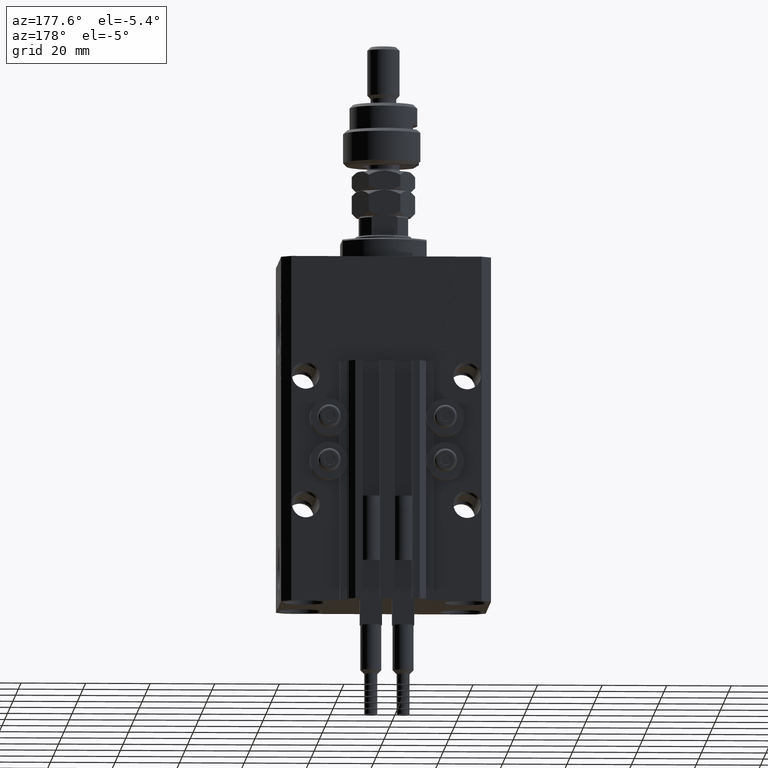
[diagram: clean part render]
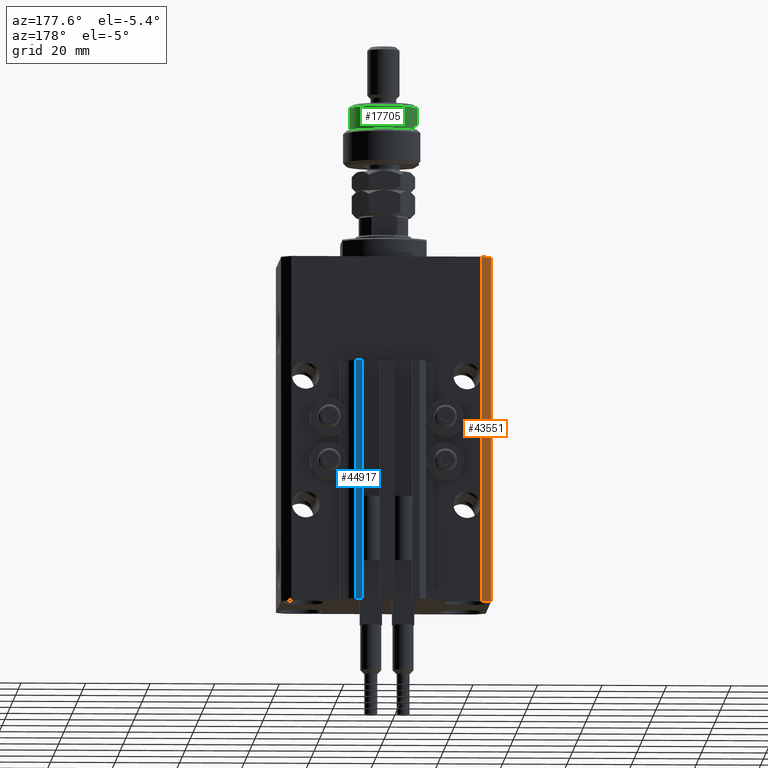
[diagram: same view with three faces highlighted in distinct colors, each labeled with its STEP entity id]
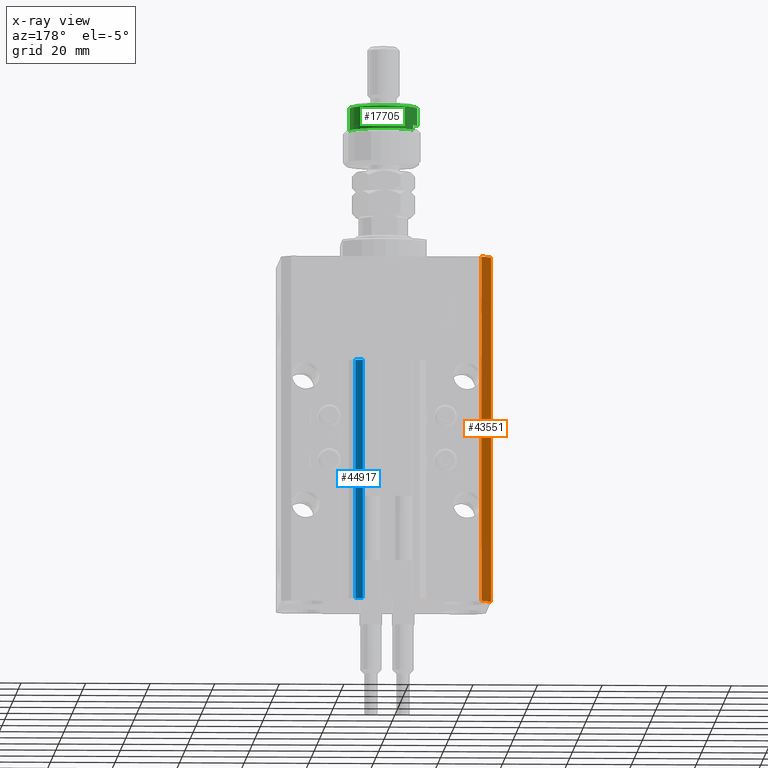
[diagram: x-ray of the same camera — body ghosted, the three highlighted faces saturated]
A machine part, auxiliary view with three faces highlighted in distinct colors.
The next image is the same camera in x-ray (body ghosted, the three faces saturated) — at least one of them is partly hidden behind the body in this view.
Their STEP definitions:

[orange] entity #43551 — the highlighted planar face has unit normal (-0.7071, 0.7071, 0).
#1426 = EDGE_LOOP ( 'NONE', ( #9953, #42398, #10125, #46080 ) ) ;
#3256 = EDGE_CURVE ( 'NONE', #30789, #12970, #38847, .T. ) ;
#5864 = CARTESIAN_POINT ( 'NONE',  ( -32.49999999999650413, 19.49999999999949907, -107.0000000000000000 ) ) ;
#7601 = CARTESIAN_POINT ( 'NONE',  ( -29.49999999999650413, 22.49999999999949907, 0.000000000000000000 ) ) ;
#7743 = CARTESIAN_POINT ( 'NONE',  ( -32.49999999999650413, 19.49999999999949907, 0.000000000000000000 ) ) ;
#9953 = ORIENTED_EDGE ( 'NONE', *, *, #3256, .F. ) ;
#10125 = ORIENTED_EDGE ( 'NONE', *, *, #39813, .T. ) ;
#11786 = DIRECTION ( 'NONE',  ( -0.7071067811865474617, -0.7071067811865474617, 0.000000000000000000 ) ) ;
#12970 = VERTEX_POINT ( 'NONE', #7743 ) ;
#13040 = CARTESIAN_POINT ( 'NONE',  ( -32.49999999999650413, 19.49999999999949907, -107.0000000000000000 ) ) ;
#14966 = DIRECTION ( 'NONE',  ( 0.000000000000000000, 0.000000000000000000, 1.000000000000000000 ) ) ;
#15742 = LINE ( 'NONE', #31720, #22357 ) ;
#17037 = PLANE ( 'NONE',  #47577 ) ;
#17490 = CARTESIAN_POINT ( 'NONE',  ( -29.49999999999650413, 22.49999999999949907, 0.000000000000000000 ) ) ;
#19177 = LINE ( 'NONE', #26246, #34578 ) ;
#21188 = DIRECTION ( 'NONE',  ( 0.000000000000000000, 0.000000000000000000, 1.000000000000000000 ) ) ;
#21237 = DIRECTION ( 'NONE',  ( -0.7071067811865474617, -0.7071067811865474617, 0.000000000000000000 ) ) ;
#22357 = VECTOR ( 'NONE', #11786, 1000.000000000000114 ) ;
#23371 = DIRECTION ( 'NONE',  ( -0.7071067811865474617, -0.7071067811865474617, 0.000000000000000000 ) ) ;
#25153 = VECTOR ( 'NONE', #23371, 1000.000000000000114 ) ;
#26246 = CARTESIAN_POINT ( 'NONE',  ( -29.49999999999650413, 22.49999999999949907, -107.0000000000000000 ) ) ;
#27500 = EDGE_CURVE ( 'NONE', #29322, #30789, #19177, .T. ) ;
#27972 = VECTOR ( 'NONE', #21188, 1000.000000000000000 ) ;
#29322 = VERTEX_POINT ( 'NONE', #29369 ) ;
#29369 = CARTESIAN_POINT ( 'NONE',  ( -29.49999999999650413, 22.49999999999949907, -107.0000000000000000 ) ) ;
#30587 = EDGE_CURVE ( 'NONE', #31124, #12970, #32970, .T. ) ;
#30789 = VERTEX_POINT ( 'NONE', #17490 ) ;
#31124 = VERTEX_POINT ( 'NONE', #5864 ) ;
#31720 = CARTESIAN_POINT ( 'NONE',  ( -29.49999999999650413, 22.49999999999949907, -107.0000000000000000 ) ) ;
#32970 = LINE ( 'NONE', #13040, #27972 ) ;
#33542 = FACE_OUTER_BOUND ( 'NONE', #1426, .T. ) ;
#34578 = VECTOR ( 'NONE', #14966, 1000.000000000000000 ) ;
#38847 = LINE ( 'NONE', #7601, #25153 ) ;
#39813 = EDGE_CURVE ( 'NONE', #29322, #31124, #15742, .T. ) ;
#41163 = CARTESIAN_POINT ( 'NONE',  ( -29.49999999999650413, 22.49999999999949907, -107.0000000000000000 ) ) ;
#42398 = ORIENTED_EDGE ( 'NONE', *, *, #27500, .F. ) ;
#43551 = ADVANCED_FACE ( 'NONE', ( #33542 ), #17037, .T. ) ;
#46080 = ORIENTED_EDGE ( 'NONE', *, *, #30587, .T. ) ;
#47577 = AXIS2_PLACEMENT_3D ( 'NONE', #41163, #48757, #21237 ) ;
#48757 = DIRECTION ( 'NONE',  ( -0.7071067811865475727, 0.7071067811865475727, 0.000000000000000000 ) ) ;

[blue] entity #44917 — the highlighted planar face has unit normal (-0, 1, 0).
#365 = FACE_OUTER_BOUND ( 'NONE', #9327, .T. ) ;
#1465 = CARTESIAN_POINT ( 'NONE',  ( 7.649999999999995026, 30.49999999999949196, -107.0000000000000000 ) ) ;
#2595 = ORIENTED_EDGE ( 'NONE', *, *, #47263, .T. ) ;
#2663 = VERTEX_POINT ( 'NONE', #14512 ) ;
#3057 = LINE ( 'NONE', #31097, #29399 ) ;
#3982 = LINE ( 'NONE', #48293, #13906 ) ;
#5318 = VECTOR ( 'NONE', #18064, 1000.000000000000000 ) ;
#6739 = LINE ( 'NONE', #42681, #5318 ) ;
#8421 = DIRECTION ( 'NONE',  ( 0.000000000000000000, 0.000000000000000000, 1.000000000000000000 ) ) ;
#9327 = EDGE_LOOP ( 'NONE', ( #37849, #24483, #24659, #2595 ) ) ;
#13204 = DIRECTION ( 'NONE',  ( -1.000000000000000000, -1.476360405086644852E-15, 0.000000000000000000 ) ) ;
#13817 = VERTEX_POINT ( 'NONE', #1465 ) ;
#13906 = VECTOR ( 'NONE', #8421, 1000.000000000000000 ) ;
#14512 = CARTESIAN_POINT ( 'NONE',  ( 7.649999999999995026, 30.49999999999949196, -33.00000000000000000 ) ) ;
#16378 = CARTESIAN_POINT ( 'NONE',  ( 9.999999999999994671, 30.49999999999949551, -107.0000000000000000 ) ) ;
#17536 = EDGE_CURVE ( 'NONE', #35872, #2663, #18286, .T. ) ;
#18064 = DIRECTION ( 'NONE',  ( 0.000000000000000000, 0.000000000000000000, 1.000000000000000000 ) ) ;
#18286 = LINE ( 'NONE', #38216, #33072 ) ;
#19201 = AXIS2_PLACEMENT_3D ( 'NONE', #16378, #32615, #13204 ) ;
#22044 = EDGE_CURVE ( 'NONE', #22481, #13817, #3057, .T. ) ;
#22481 = VERTEX_POINT ( 'NONE', #42290 ) ;
#23246 = DIRECTION ( 'NONE',  ( -1.000000000000000000, -1.476360405086644852E-15, 0.000000000000000000 ) ) ;
#24483 = ORIENTED_EDGE ( 'NONE', *, *, #38795, .F. ) ;
#24659 = ORIENTED_EDGE ( 'NONE', *, *, #22044, .T. ) ;
#29399 = VECTOR ( 'NONE', #36335, 1000.000000000000000 ) ;
#31097 = CARTESIAN_POINT ( 'NONE',  ( 9.999999999999994671, 30.49999999999949551, -107.0000000000000000 ) ) ;
#32615 = DIRECTION ( 'NONE',  ( -1.476360405086644852E-15, 1.000000000000000000, 0.000000000000000000 ) ) ;
#33072 = VECTOR ( 'NONE', #23246, 1000.000000000000000 ) ;
#35872 = VERTEX_POINT ( 'NONE', #46277 ) ;
#36335 = DIRECTION ( 'NONE',  ( -1.000000000000000000, -1.476360405086644852E-15, 0.000000000000000000 ) ) ;
#37849 = ORIENTED_EDGE ( 'NONE', *, *, #17536, .F. ) ;
#38216 = CARTESIAN_POINT ( 'NONE',  ( 9.999999999999994671, 30.49999999999949551, -33.00000000000000000 ) ) ;
#38795 = EDGE_CURVE ( 'NONE', #22481, #35872, #3982, .T. ) ;
#40773 = PLANE ( 'NONE',  #19201 ) ;
#42290 = CARTESIAN_POINT ( 'NONE',  ( 9.999999999999994671, 30.49999999999949551, -107.0000000000000000 ) ) ;
#42681 = CARTESIAN_POINT ( 'NONE',  ( 7.649999999999995026, 30.49999999999949196, -107.0000000000000000 ) ) ;
#44917 = ADVANCED_FACE ( 'NONE', ( #365 ), #40773, .T. ) ;
#46277 = CARTESIAN_POINT ( 'NONE',  ( 9.999999999999994671, 30.49999999999949551, -33.00000000000000000 ) ) ;
#47263 = EDGE_CURVE ( 'NONE', #13817, #2663, #6739, .T. ) ;
#48293 = CARTESIAN_POINT ( 'NONE',  ( 9.999999999999994671, 30.49999999999949551, -107.0000000000000000 ) ) ;

[green] entity #17705 — the highlighted cylindrical surface (edge-blend (fillet) strip) has radius 10.5 mm, axis along (-0, -0, -1).
#377 = FACE_OUTER_BOUND ( 'NONE', #21105, .T. ) ;
#821 = LINE ( 'NONE', #16836, #46147 ) ;
#1079 = DIRECTION ( 'NONE',  ( -0.000000000000000000, -0.000000000000000000, -1.000000000000000000 ) ) ;
#3805 = AXIS2_PLACEMENT_3D ( 'NONE', #28184, #35543, #36315 ) ;
#3899 = ORIENTED_EDGE ( 'NONE', *, *, #31760, .F. ) ;
#4113 = EDGE_CURVE ( 'NONE', #51457, #18375, #13421, .T. ) ;
#4698 = DIRECTION ( 'NONE',  ( 0.000000000000000000, 0.000000000000000000, 1.000000000000000000 ) ) ;
#4893 = LINE ( 'NONE', #16703, #10473 ) ;
#5355 = DIRECTION ( 'NONE',  ( 1.000000000000000000, 0.000000000000000000, 0.000000000000000000 ) ) ;
#5423 = CARTESIAN_POINT ( 'NONE',  ( 0.000000000000000000, 0.000000000000000000, 12.50000000000000000 ) ) ;
#7595 = DIRECTION ( 'NONE',  ( 0.000000000000000000, 0.000000000000000000, 1.000000000000000000 ) ) ;
#8266 = ORIENTED_EDGE ( 'NONE', *, *, #13766, .T. ) ;
#9029 = CARTESIAN_POINT ( 'NONE',  ( 0.000000000000000000, 0.000000000000000000, 17.99999999999999645 ) ) ;
#9090 = DIRECTION ( 'NONE',  ( -1.000000000000000000, 0.000000000000000000, 0.000000000000000000 ) ) ;
#10473 = VECTOR ( 'NONE', #7595, 1000.000000000000000 ) ;
#11204 = ORIENTED_EDGE ( 'NONE', *, *, #4113, .T. ) ;
#12068 = ORIENTED_EDGE ( 'NONE', *, *, #28438, .F. ) ;
#13421 = CIRCLE ( 'NONE', #49448, 10.50000000000000000 ) ;
#13766 = EDGE_CURVE ( 'NONE', #49503, #16724, #4893, .T. ) ;
#14595 = ORIENTED_EDGE ( 'NONE', *, *, #26476, .T. ) ;
#16703 = CARTESIAN_POINT ( 'NONE',  ( -8.944271909999159220, 5.500000000000000000, 19.00000000000000000 ) ) ;
#16724 = VERTEX_POINT ( 'NONE', #43087 ) ;
#16836 = CARTESIAN_POINT ( 'NONE',  ( 10.50000000000000000, 1.285879139104720831E-15, 19.00000000000000000 ) ) ;
#17705 = ADVANCED_FACE ( 'NONE', ( #377 ), #20330, .T. ) ;
#18314 = DIRECTION ( 'NONE',  ( -0.000000000000000000, -0.000000000000000000, -1.000000000000000000 ) ) ;
#18375 = VERTEX_POINT ( 'NONE', #29281 ) ;
#20330 = CYLINDRICAL_SURFACE ( 'NONE', #3805, 10.50000000000000000 ) ;
#20856 = DIRECTION ( 'NONE',  ( 0.000000000000000000, 0.000000000000000000, -1.000000000000000000 ) ) ;
#21105 = EDGE_LOOP ( 'NONE', ( #11204, #22217, #14595, #8266, #3899, #12068 ) ) ;
#22217 = ORIENTED_EDGE ( 'NONE', *, *, #46163, .T. ) ;
#23662 = CARTESIAN_POINT ( 'NONE',  ( -10.50000000000000000, 0.000000000000000000, 17.99999999999999645 ) ) ;
#25136 = CARTESIAN_POINT ( 'NONE',  ( 0.000000000000000000, 0.000000000000000000, 11.00000000000000000 ) ) ;
#26476 = EDGE_CURVE ( 'NONE', #32431, #49503, #30328, .T. ) ;
#28184 = CARTESIAN_POINT ( 'NONE',  ( 0.000000000000000000, 0.000000000000000000, 19.00000000000000000 ) ) ;
#28438 = EDGE_CURVE ( 'NONE', #51457, #34453, #42423, .T. ) ;
#29281 = CARTESIAN_POINT ( 'NONE',  ( 10.50000000000000000, 1.285879139104720831E-15, 17.99999999999999645 ) ) ;
#30328 = CIRCLE ( 'NONE', #34537, 10.50000000000000000 ) ;
#31760 = EDGE_CURVE ( 'NONE', #34453, #16724, #43075, .T. ) ;
#32431 = VERTEX_POINT ( 'NONE', #50658 ) ;
#32481 = DIRECTION ( 'NONE',  ( 1.000000000000000000, 0.000000000000000000, 0.000000000000000000 ) ) ;
#33029 = AXIS2_PLACEMENT_3D ( 'NONE', #5423, #41628, #9090 ) ;
#34453 = VERTEX_POINT ( 'NONE', #35891 ) ;
#34537 = AXIS2_PLACEMENT_3D ( 'NONE', #25136, #4698, #32481 ) ;
#34794 = CARTESIAN_POINT ( 'NONE',  ( -10.50000000000000000, 0.000000000000000000, 19.00000000000000000 ) ) ;
#35543 = DIRECTION ( 'NONE',  ( -0.000000000000000000, -0.000000000000000000, -1.000000000000000000 ) ) ;
#35891 = CARTESIAN_POINT ( 'NONE',  ( -10.50000000000000000, 0.000000000000000000, 12.50000000000000000 ) ) ;
#36315 = DIRECTION ( 'NONE',  ( -1.000000000000000000, 0.000000000000000000, 0.000000000000000000 ) ) ;
#37355 = CARTESIAN_POINT ( 'NONE',  ( -8.944271909999159220, 5.500000000000000000, 11.00000000000000000 ) ) ;
#41628 = DIRECTION ( 'NONE',  ( 0.000000000000000000, 0.000000000000000000, -1.000000000000000000 ) ) ;
#42423 = LINE ( 'NONE', #34794, #50530 ) ;
#43075 = CIRCLE ( 'NONE', #33029, 10.50000000000000000 ) ;
#43087 = CARTESIAN_POINT ( 'NONE',  ( -8.944271909999159220, 5.500000000000000000, 12.50000000000000000 ) ) ;
#46147 = VECTOR ( 'NONE', #1079, 1000.000000000000000 ) ;
#46163 = EDGE_CURVE ( 'NONE', #18375, #32431, #821, .T. ) ;
#49448 = AXIS2_PLACEMENT_3D ( 'NONE', #9029, #20856, #5355 ) ;
#49503 = VERTEX_POINT ( 'NONE', #37355 ) ;
#50530 = VECTOR ( 'NONE', #18314, 1000.000000000000000 ) ;
#50658 = CARTESIAN_POINT ( 'NONE',  ( 10.50000000000000000, 1.285879139104720831E-15, 11.00000000000000000 ) ) ;
#51457 = VERTEX_POINT ( 'NONE', #23662 ) ;